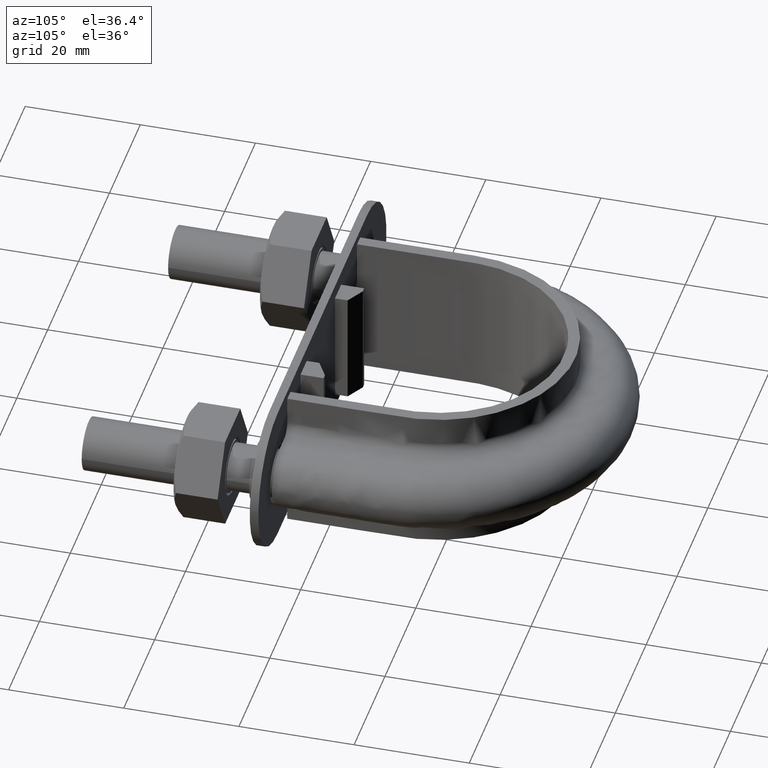
[diagram: clean part render]
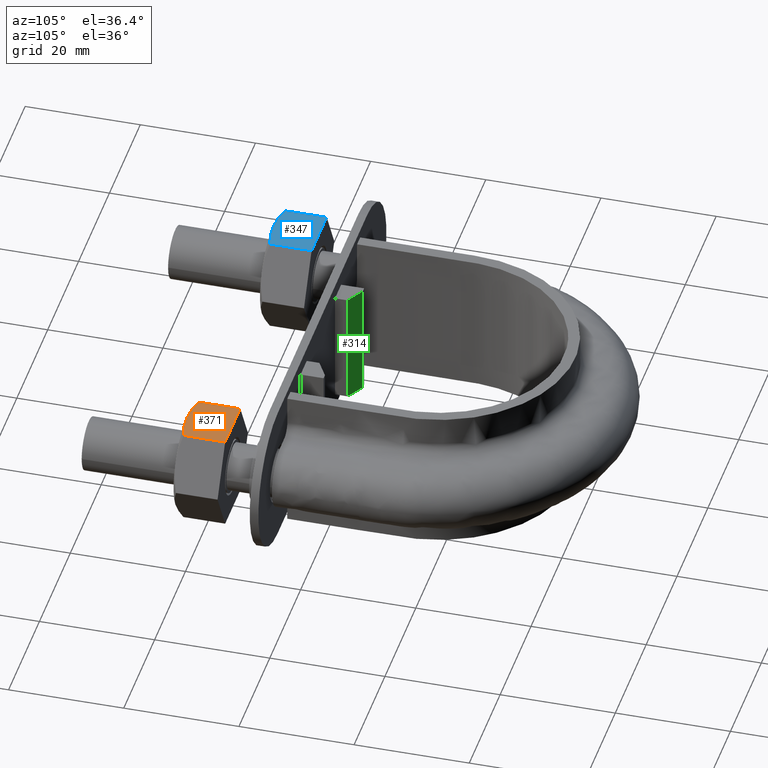
[diagram: same view with three faces highlighted in distinct colors, each labeled with its STEP entity id]
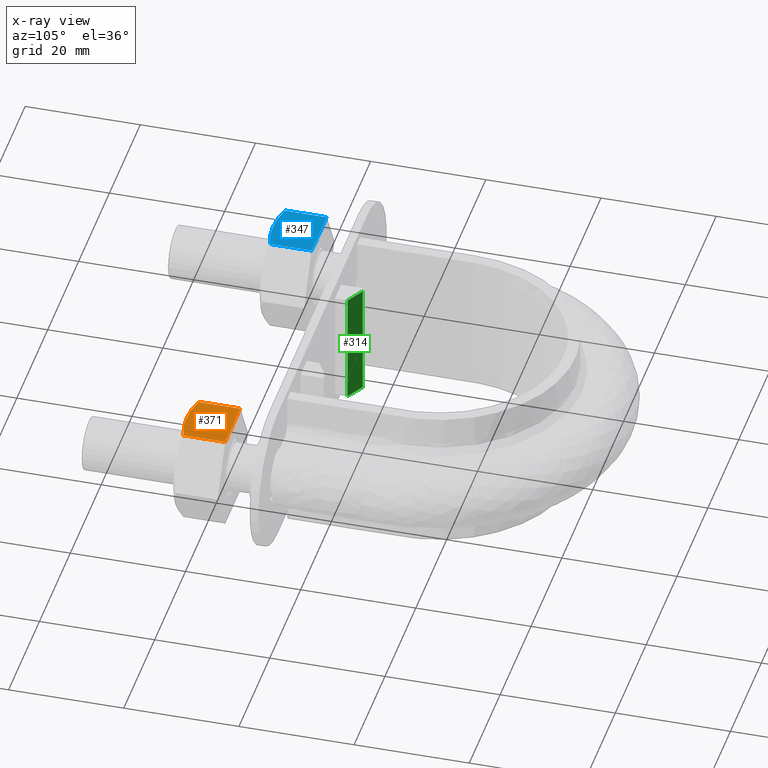
[diagram: x-ray of the same camera — body ghosted, the three highlighted faces saturated]
A machine part, auxiliary view with three faces highlighted in distinct colors.
The next image is the same camera in x-ray (body ghosted, the three faces saturated) — at least one of them is partly hidden behind the body in this view.
Their STEP definitions:

[orange] entity #371 — the highlighted planar face has unit normal (-0, 0, -1).
#371 = ADVANCED_FACE( '', ( #616 ), #617, .F. );
#616 = FACE_OUTER_BOUND( '', #1694, .T. );
#617 = PLANE( '', #1695 );
#1694 = EDGE_LOOP( '', ( #2469, #2470, #2471, #2472, #2473 ) );
#1695 = AXIS2_PLACEMENT_3D( '', #2474, #2475, #2476 );
#2469 = ORIENTED_EDGE( '', *, *, #2746, .F. );
#2470 = ORIENTED_EDGE( '', *, *, #2700, .F. );
#2471 = ORIENTED_EDGE( '', *, *, #2748, .F. );
#2472 = ORIENTED_EDGE( '', *, *, #2720, .F. );
#2473 = ORIENTED_EDGE( '', *, *, #2729, .F. );
#2474 = CARTESIAN_POINT( '', ( 23.0925227118932, 25.0000000000000, 8.50000000000082 ) );
#2475 = DIRECTION( '', ( -4.68736160996741E-013, 6.12303176912337E-017, -1.00000000000000 ) );
#2476 = DIRECTION( '', ( -1.00000000000000, 0.000000000000000, 4.68736160996741E-013 ) );
#2700 = EDGE_CURVE( '', #3053, #3056, #3057, .T. );
#2720 = EDGE_CURVE( '', #3092, #3094, #3095, .T. );
#2729 = EDGE_CURVE( '', #3108, #3092, #3110, .F. );
#2746 = EDGE_CURVE( '', #3056, #3108, #3133, .T. );
#2748 = EDGE_CURVE( '', #3094, #3053, #3135, .T. );
#3053 = VERTEX_POINT( '', #3832 );
#3056 = VERTEX_POINT( '', #3835 );
#3057 = B_SPLINE_CURVE_WITH_KNOTS( '', 3, ( #3836, #3837, #3838, #3839, #3840, #3841 ), .UNSPECIFIED., .F., .F., ( 4, 2, 4 ), ( 9.81307786677359E-017, 0.00246745482903557, 0.00493490965807104 ), .UNSPECIFIED. );
#3092 = VERTEX_POINT( '', #3902 );
#3094 = VERTEX_POINT( '', #3904 );
#3095 = LINE( '', #3905, #3906 );
#3108 = VERTEX_POINT( '', #3923 );
#3110 = LINE( '', #3925, #3926 );
#3133 = B_SPLINE_CURVE_WITH_KNOTS( '', 3, ( #3974, #3975, #3976, #3977, #3978, #3979 ), .UNSPECIFIED., .F., .F., ( 4, 2, 4 ), ( 6.93889390390723E-018, 0.00246745482903563, 0.00493490965807126 ), .UNSPECIFIED. );
#3135 = LINE( '', #3986, #3987 );
#3832 = CARTESIAN_POINT( '', ( 32.8774993593059, 17.7505553499468, 8.49999999999623 ) );
#3835 = CARTESIAN_POINT( '', ( 28.0000000000040, 17.0000000000004, 8.49999999999852 ) );
#3836 = CARTESIAN_POINT( '', ( 32.8774993593058, 17.7505553499467, 8.49999999999623 ) );
#3837 = CARTESIAN_POINT( '', ( 32.0805717066804, 17.5215585493659, 8.49999999999661 ) );
#3838 = CARTESIAN_POINT( '', ( 31.2774431756661, 17.3328582843710, 8.49999999999699 ) );
#3839 = CARTESIAN_POINT( '', ( 29.6533062476893, 17.0716504305294, 8.49999999999774 ) );
#3840 = CARTESIAN_POINT( '', ( 28.8321659501945, 17.0000000000004, 8.49999999999813 ) );
#3841 = CARTESIAN_POINT( '', ( 28.0000000000040, 17.0000000000004, 8.49999999999852 ) );
#3902 = CARTESIAN_POINT( '', ( 23.1225006407020, 25.0000000000000, 8.50000000000081 ) );
#3904 = CARTESIAN_POINT( '', ( 32.8774993593060, 25.0000000000000, 8.49999999999623 ) );
#3905 = CARTESIAN_POINT( '', ( 18.2000000000061, 25.0000000000000, 8.50000000000311 ) );
#3906 = VECTOR( '', #4288, 1000.00000000000 );
#3923 = CARTESIAN_POINT( '', ( 23.1225006407020, 17.7505553499468, 8.50000000000081 ) );
#3925 = CARTESIAN_POINT( '', ( 23.1225006407020, 25.0000000000000, 8.50000000000081 ) );
#3926 = VECTOR( '', #4305, 1000.00000000000 );
#3974 = CARTESIAN_POINT( '', ( 28.0000000000040, 17.0000000000004, 8.49999999999852 ) );
#3975 = CARTESIAN_POINT( '', ( 27.1678340498134, 17.0000000000004, 8.49999999999891 ) );
#3976 = CARTESIAN_POINT( '', ( 26.3466937523186, 17.0716504305294, 8.49999999999930 ) );
#3977 = CARTESIAN_POINT( '', ( 24.7225568243417, 17.3328582843710, 8.50000000000006 ) );
#3978 = CARTESIAN_POINT( '', ( 23.9194282933277, 17.5215585493659, 8.50000000000043 ) );
#3979 = CARTESIAN_POINT( '', ( 23.1225006407022, 17.7505553499467, 8.50000000000081 ) );
#3986 = CARTESIAN_POINT( '', ( 32.8774993593060, 25.0000000000000, 8.49999999999623 ) );
#3987 = VECTOR( '', #4332, 1000.00000000000 );
#4288 = DIRECTION( '', ( 1.00000000000000, -2.44921270764446E-016, -4.68736160996741E-013 ) );
#4305 = DIRECTION( '', ( -2.44921270764475E-016, -1.00000000000000, -6.12303176911189E-017 ) );
#4332 = DIRECTION( '', ( -2.44921270764475E-016, -1.00000000000000, -6.12303176911189E-017 ) );

[blue] entity #347 — the highlighted planar face has unit normal (-0, 0, -1).
#347 = ADVANCED_FACE( '', ( #563 ), #564, .F. );
#563 = FACE_OUTER_BOUND( '', #1641, .T. );
#564 = PLANE( '', #1642 );
#1641 = EDGE_LOOP( '', ( #2290, #2291, #2292, #2293, #2294 ) );
#1642 = AXIS2_PLACEMENT_3D( '', #2295, #2296, #2297 );
#2290 = ORIENTED_EDGE( '', *, *, #2694, .F. );
#2291 = ORIENTED_EDGE( '', *, *, #2648, .F. );
#2292 = ORIENTED_EDGE( '', *, *, #2695, .F. );
#2293 = ORIENTED_EDGE( '', *, *, #2669, .F. );
#2294 = ORIENTED_EDGE( '', *, *, #2678, .F. );
#2295 = CARTESIAN_POINT( '', ( -32.9074772881067, 25.0000000000000, 8.50000000000082 ) );
#2296 = DIRECTION( '', ( -4.68736160996741E-013, 6.12303176912337E-017, -1.00000000000000 ) );
#2297 = DIRECTION( '', ( -1.00000000000000, 0.000000000000000, 4.68736160996741E-013 ) );
#2648 = EDGE_CURVE( '', #2967, #2970, #2971, .T. );
#2669 = EDGE_CURVE( '', #3007, #3009, #3010, .T. );
#2678 = EDGE_CURVE( '', #3023, #3007, #3025, .F. );
#2694 = EDGE_CURVE( '', #2970, #3023, #3047, .T. );
#2695 = EDGE_CURVE( '', #3009, #2967, #3048, .T. );
#2967 = VERTEX_POINT( '', #3668 );
#2970 = VERTEX_POINT( '', #3671 );
#2971 = B_SPLINE_CURVE_WITH_KNOTS( '', 3, ( #3672, #3673, #3674, #3675, #3676, #3677 ), .UNSPECIFIED., .F., .F., ( 4, 2, 4 ), ( 9.46974725299100E-017, 0.00246745482903557, 0.00493490965807104 ), .UNSPECIFIED. );
#3007 = VERTEX_POINT( '', #3750 );
#3009 = VERTEX_POINT( '', #3752 );
#3010 = LINE( '', #3753, #3754 );
#3023 = VERTEX_POINT( '', #3770 );
#3025 = LINE( '', #3772, #3773 );
#3047 = B_SPLINE_CURVE_WITH_KNOTS( '', 3, ( #3814, #3815, #3816, #3817, #3818, #3819 ), .UNSPECIFIED., .F., .F., ( 4, 2, 4 ), ( 6.93889390390723E-018, 0.00246745482903564, 0.00493490965807126 ), .UNSPECIFIED. );
#3048 = LINE( '', #3820, #3821 );
#3668 = CARTESIAN_POINT( '', ( -23.1225006406941, 17.7505553499468, 8.49999999999623 ) );
#3671 = CARTESIAN_POINT( '', ( -27.9999999999960, 17.0000000000004, 8.49999999999852 ) );
#3672 = CARTESIAN_POINT( '', ( -23.1225006406942, 17.7505553499467, 8.49999999999623 ) );
#3673 = CARTESIAN_POINT( '', ( -23.9194282933196, 17.5215585493659, 8.49999999999661 ) );
#3674 = CARTESIAN_POINT( '', ( -24.7225568243339, 17.3328582843710, 8.49999999999699 ) );
#3675 = CARTESIAN_POINT( '', ( -26.3466937523107, 17.0716504305294, 8.49999999999774 ) );
#3676 = CARTESIAN_POINT( '', ( -27.1678340498055, 17.0000000000004, 8.49999999999813 ) );
#3677 = CARTESIAN_POINT( '', ( -27.9999999999960, 17.0000000000004, 8.49999999999852 ) );
#3750 = CARTESIAN_POINT( '', ( -32.8774993592980, 25.0000000000000, 8.50000000000081 ) );
#3752 = CARTESIAN_POINT( '', ( -23.1225006406940, 25.0000000000000, 8.49999999999623 ) );
#3753 = CARTESIAN_POINT( '', ( -37.7999999999938, 25.0000000000000, 8.50000000000311 ) );
#3754 = VECTOR( '', #4199, 1000.00000000000 );
#3770 = CARTESIAN_POINT( '', ( -32.8774993592980, 17.7505553499468, 8.50000000000081 ) );
#3772 = CARTESIAN_POINT( '', ( -32.8774993592980, 25.0000000000000, 8.50000000000081 ) );
#3773 = VECTOR( '', #4218, 1000.00000000000 );
#3814 = CARTESIAN_POINT( '', ( -27.9999999999960, 17.0000000000004, 8.49999999999852 ) );
#3815 = CARTESIAN_POINT( '', ( -28.8321659501866, 17.0000000000004, 8.49999999999891 ) );
#3816 = CARTESIAN_POINT( '', ( -29.6533062476814, 17.0716504305294, 8.49999999999930 ) );
#3817 = CARTESIAN_POINT( '', ( -31.2774431756583, 17.3328582843710, 8.50000000000006 ) );
#3818 = CARTESIAN_POINT( '', ( -32.0805717066723, 17.5215585493659, 8.50000000000043 ) );
#3819 = CARTESIAN_POINT( '', ( -32.8774993592978, 17.7505553499467, 8.50000000000081 ) );
#3820 = CARTESIAN_POINT( '', ( -23.1225006406940, 25.0000000000000, 8.49999999999623 ) );
#3821 = VECTOR( '', #4247, 1000.00000000000 );
#4199 = DIRECTION( '', ( 1.00000000000000, -2.44921270764446E-016, -4.68736160996741E-013 ) );
#4218 = DIRECTION( '', ( -2.44921270764475E-016, -1.00000000000000, -6.12303176911189E-017 ) );
#4247 = DIRECTION( '', ( -2.44921270764475E-016, -1.00000000000000, -6.12303176911189E-017 ) );

[green] entity #314 — the highlighted planar face has unit normal (0.5, 0.866, -0).
#314 = ADVANCED_FACE( '', ( #491 ), #492, .T. );
#491 = FACE_OUTER_BOUND( '', #1569, .T. );
#492 = PLANE( '', #1570 );
#1569 = EDGE_LOOP( '', ( #2049, #2050, #2051, #2052 ) );
#1570 = AXIS2_PLACEMENT_3D( '', #2053, #2054, #2055 );
#2049 = ORIENTED_EDGE( '', *, *, #2628, .F. );
#2050 = ORIENTED_EDGE( '', *, *, #2629, .F. );
#2051 = ORIENTED_EDGE( '', *, *, #2621, .T. );
#2052 = ORIENTED_EDGE( '', *, *, #2624, .T. );
#2053 = CARTESIAN_POINT( '', ( -9.15000000000461, 35.0000000000002, -9.99999999999574 ) );
#2054 = DIRECTION( '', ( 0.500000000000010, 0.866025403784433, -2.35121013022263E-013 ) );
#2055 = DIRECTION( '', ( -4.70242026044517E-013, 0.000000000000000, -1.00000000000000 ) );
#2621 = EDGE_CURVE( '', #2929, #2927, #2930, .T. );
#2624 = EDGE_CURVE( '', #2927, #2932, #2935, .T. );
#2628 = EDGE_CURVE( '', #2938, #2932, #2940, .F. );
#2629 = EDGE_CURVE( '', #2929, #2938, #2941, .T. );
#2927 = VERTEX_POINT( '', #3603 );
#2929 = VERTEX_POINT( '', #3606 );
#2930 = LINE( '', #3607, #3608 );
#2932 = VERTEX_POINT( '', #3611 );
#2935 = LINE( '', #3615, #3616 );
#2938 = VERTEX_POINT( '', #3621 );
#2940 = LINE( '', #3624, #3625 );
#2941 = LINE( '', #3626, #3627 );
#3603 = CARTESIAN_POINT( '', ( -12.2676914536283, 36.8000000000001, -9.99999999999427 ) );
#3606 = CARTESIAN_POINT( '', ( -9.15000000000462, 35.0000000000002, -9.99999999999573 ) );
#3607 = CARTESIAN_POINT( '', ( -9.15000000000461, 35.0000000000002, -9.99999999999573 ) );
#3608 = VECTOR( '', #4138, 1000.00000000000 );
#3611 = CARTESIAN_POINT( '', ( -12.2676914536190, 36.8000000000001, 10.0000000000057 ) );
#3615 = CARTESIAN_POINT( '', ( -12.2676914536283, 36.8000000000001, -9.99999999999428 ) );
#3616 = VECTOR( '', #4141, 1000.00000000000 );
#3621 = CARTESIAN_POINT( '', ( -9.14999999999525, 35.0000000000002, 10.0000000000042 ) );
#3624 = CARTESIAN_POINT( '', ( -12.9294228634012, 37.1820508075691, 10.0000000000060 ) );
#3625 = VECTOR( '', #4145, 1000.00000000000 );
#3626 = CARTESIAN_POINT( '', ( -9.15000000000462, 35.0000000000002, -9.99999999999574 ) );
#3627 = VECTOR( '', #4146, 1000.00000000000 );
#4138 = DIRECTION( '', ( -0.866025403784433, 0.500000000000010, 4.05510388116537E-013 ) );
#4141 = DIRECTION( '', ( 4.68591535819692E-013, 9.52910975597155E-016, 1.00000000000000 ) );
#4145 = DIRECTION( '', ( 0.866025403784433, -0.500000000000010, -4.05510388116537E-013 ) );
#4146 = DIRECTION( '', ( 4.68591535819692E-013, 9.52910975597333E-016, 1.00000000000000 ) );